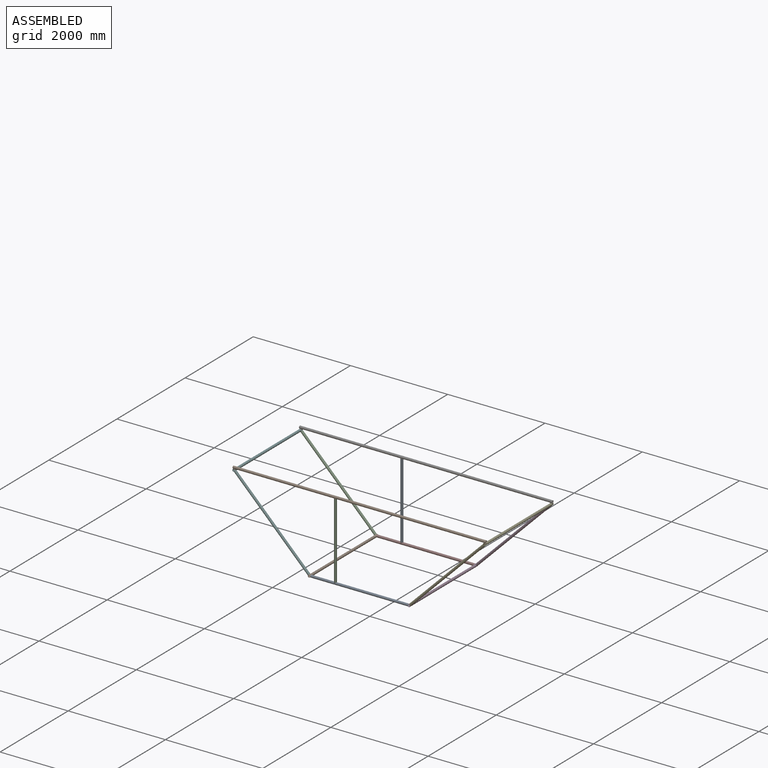
[diagram: assembled view]
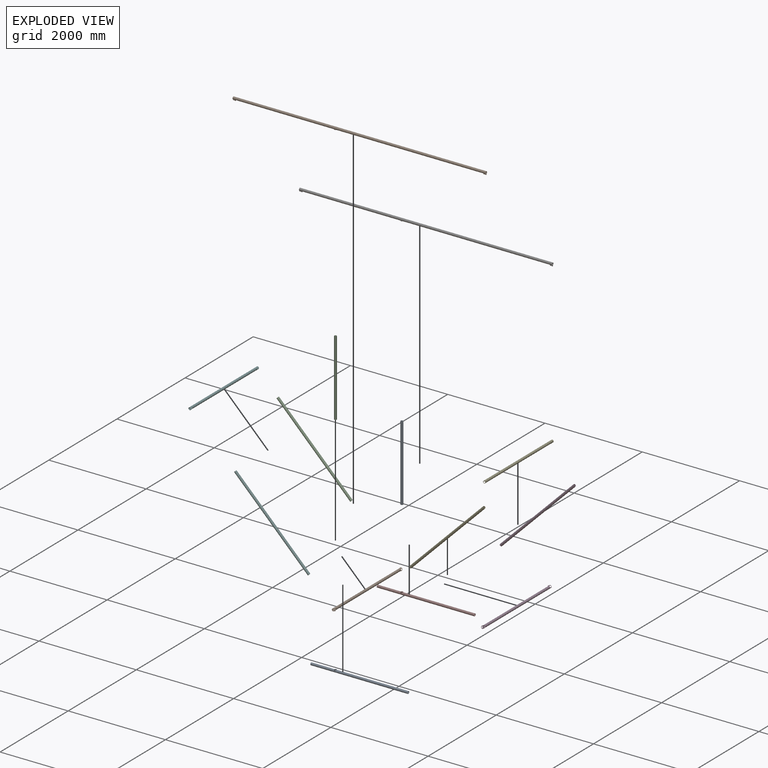
[diagram: exploded view]
GUIDED TOUR — MATED ASSEMBLY (Onshape document 16f294909b3753c3baa4b377, AutoMate assembly 16f294909b3753c3baa4b377_c614a0eb7ab384ec3b6d389d_98e67777d6a7711731985608_default)

This assembly has 14 components, labeled P0..P13 below (a component is one placed occurrence of a part; the same part can appear more than once), held together by 13 mates. A mate is a constraint between two components; its type names the relative motion it leaves free:
  FASTENED — locks the two components together rigidly (no relative motion).
Axis/direction vectors are unit vectors and 'through' points are millimeter coordinates, both in the assembly's world frame.

MATES
  1. FASTENED "Fest 11": P7 <-> P8, direction (0.000, 0.000, 1.000) through (913.53, 1638.76, -462.57) mm
  2. FASTENED "Fest 4": P13 <-> P9, direction (0.707, 0.000, -0.707) through (370.85, -310.94, -469.89) mm
  3. FASTENED "Fest 6": P4 <-> P3, direction (-0.707, 0.000, -0.707) through (2456.21, -311.24, -469.89) mm
  4. FASTENED "Fest 8": P12 <-> P11, direction (-0.707, 0.000, -0.707) through (3972.95, 1637.95, 1046.85) mm
  5. FASTENED "Fest 7": P11 <-> P3, direction (-0.707, 0.000, -0.707) through (2456.21, 1637.95, -469.89) mm
  6. FASTENED "Fest 9": P2 <-> P5, direction (-0.707, 0.000, 0.707) through (-1145.89, 1638.24, 1046.85) mm
  7. FASTENED "Fest 10": P10 <-> P0, direction (0.000, 0.000, -1.000) through (913.53, -311.76, -462.57) mm
  8. FASTENED "Fest 1": P9 <-> P0, direction (1.000, 0.000, 0.000) through (413.53, -311.76, -487.57) mm
  9. FASTENED "Fest 2": P9 <-> P7, direction (1.000, 0.000, 0.000) through (413.53, 1638.76, -487.57) mm
  10. FASTENED "Fest 12": P1 <-> P10, direction (0.000, 0.000, -1.000) through (913.53, -311.76, 1087.43) mm
  11. FASTENED "Fest 13": P6 <-> P8, direction (0.000, 0.000, -1.000) through (913.53, 1638.76, 1087.43) mm
  12. FASTENED "Fest 5": P2 <-> P9, direction (-0.707, 0.000, 0.707) through (370.85, 1638.24, -469.89) mm
  13. FASTENED "Fest 3": P3 <-> P7, direction (-1.000, 0.000, 0.000) through (2413.53, 1638.76, -487.57) mm

ASSEMBLY ORDER
  1. P13 — the base component [order verified]
  2. P2 [order verified]
  3. P11 [order verified]
  4. P4 [order verified]
  5. P9 [order verified]
  6. P3 [order verified]
  7. P10 [order verified]
  8. P8 [order verified]
  9. P12 [order verified]
  10. P5 [order verified]
  11. P1 [order verified]
  12. P6 [order verified]
  13. P0 [order verified]
  14. P7 [order verified]
Order-tag legend:
  [order verified] — this step's position reverses a verified removal order: the component was checked to insert without passing through the ones already placed.

Of the 14 components, 6 carry the full construction recipe — the FeatureScript program that regenerates the part's solid from scratch; the rest are supplied as boundary geometry only.
Because this assembly has more than 12 components, the tour below covers the 12 most significant ones individually (every recipe-attached component first, then the largest by part volume), in assembly order; the remaining 2 are summarized together in a grouped section at the end.
Each toured component is shown spotlighted twice — in the assembled view, then in the exploded view, where a leader line traces a displaced component back to its assembled socket (saturated green if recipe-attached, orange if geometry-only; every other component desaturated gray) — followed by its recipe or geometry summary and the mates that hold it.
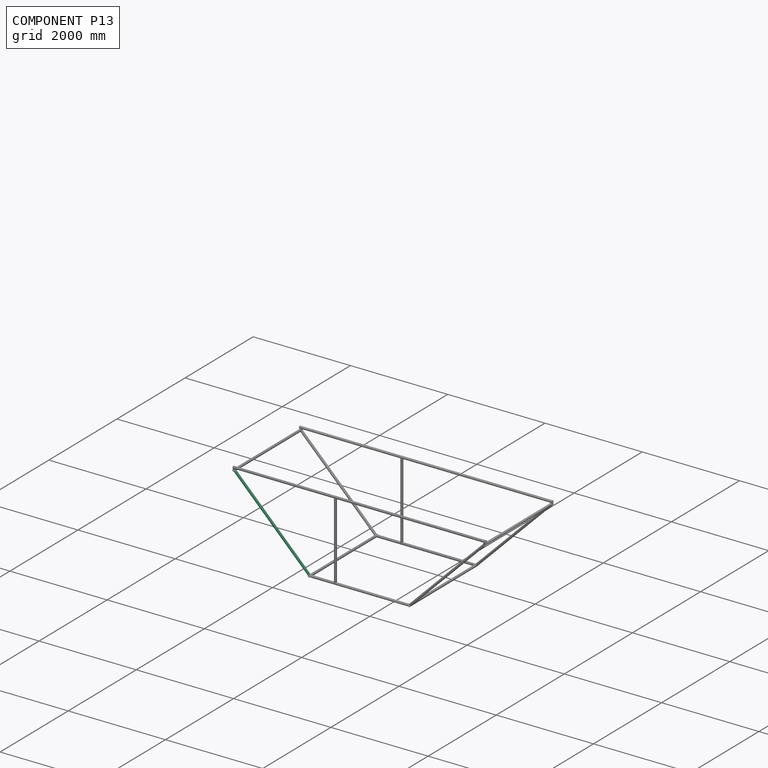
[diagram: component P13 — assembled]
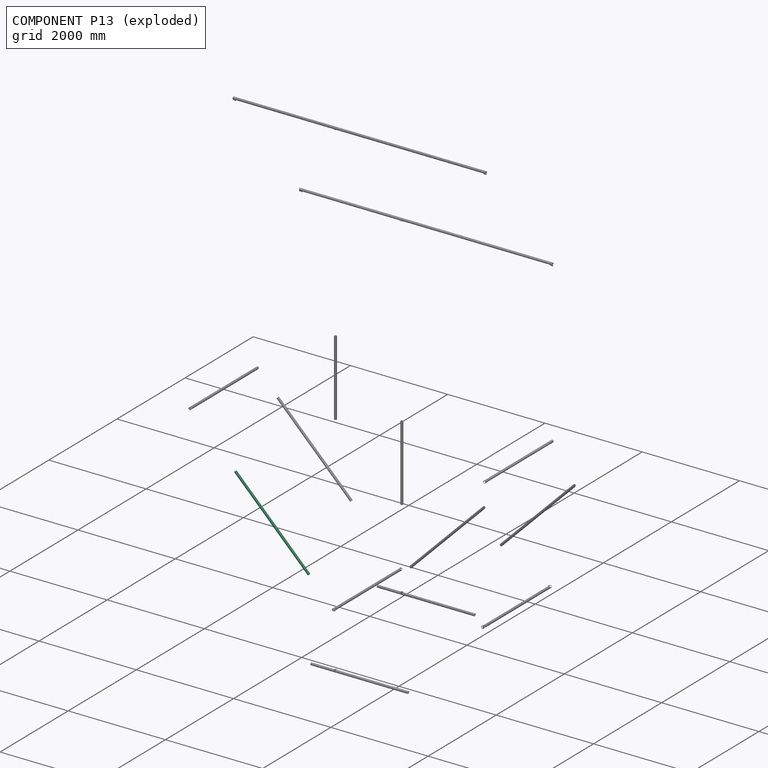
[diagram: component P13 — exploded]
COMPONENT P13 — same part as P2 (CADFS 00924504); its construction recipe is shown at P2.
Held by: FASTENED mate "Fest 4" to P9.
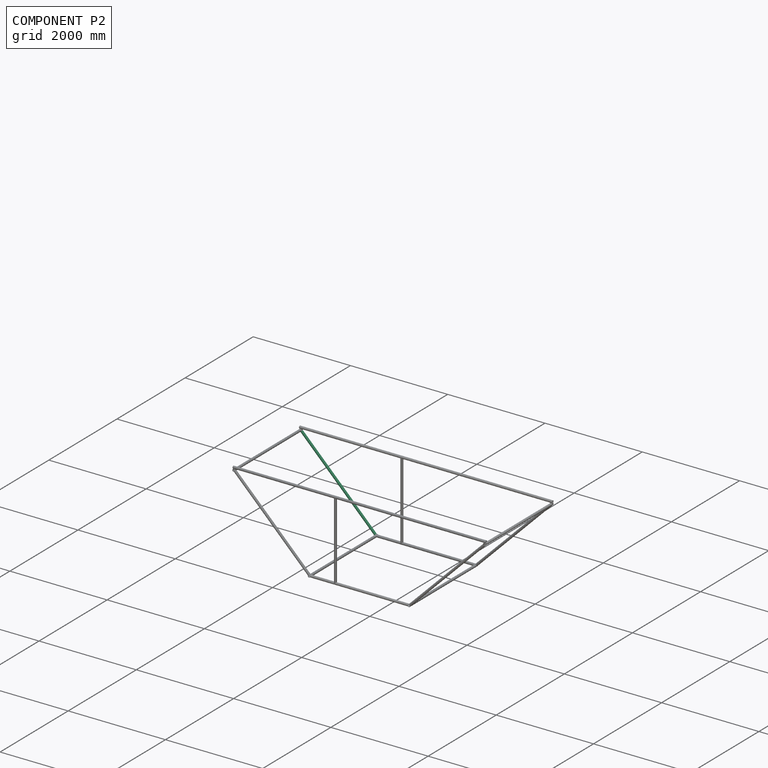
[diagram: component P2 — assembled]
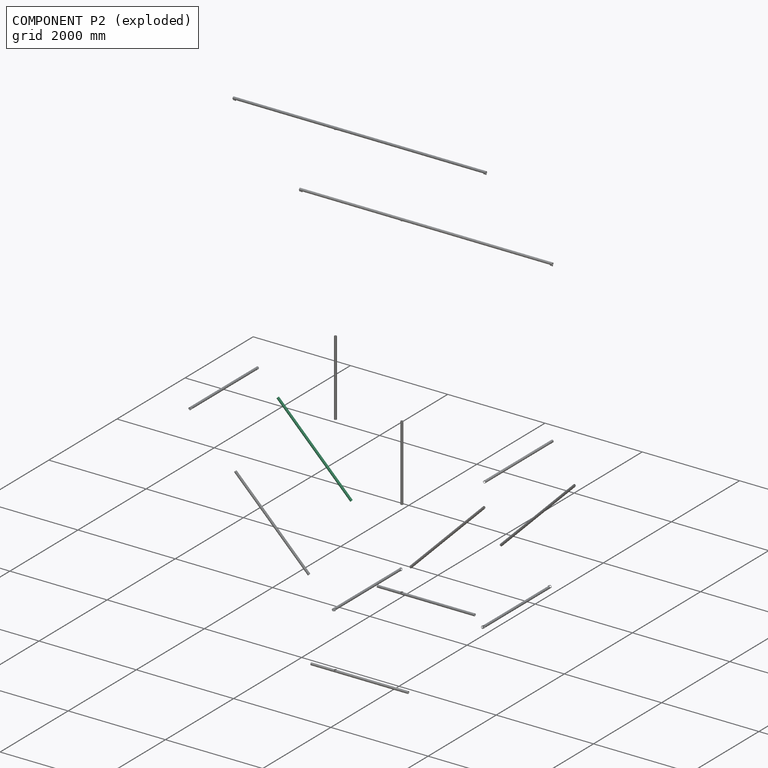
[diagram: component P2 — exploded]
COMPONENT P2 — recipe-attached (CADFS 00924504, mesh-verified: the recipe's output STEP matches this component's geometry to below the mesh-comparison resolution (tessellation chordal tolerance ~3.22 mm)).
Held by: FASTENED mate "Fest 9" to P5; FASTENED mate "Fest 5" to P9.
Construction recipe (FeatureScript — the CAD program that rebuilds this solid; sketch coordinates are in the units given by the * unit suffixes, e.g. mm):

FeatureScript 1549;
import(path : "onshape/std/geometry.fs", version : "1549.0");
import(path : "onshape/std/common.fs", version : "1549.0");
const mm = millimeter;
const VERTEX = EntityType.VERTEX;
const EDGE = EntityType.EDGE;
const FACE = EntityType.FACE;
const BODY = EntityType.BODY;
function v(x, y){return vector(x, y);}
function OD(order){return orderDisambiguation(order);}
function OSD(set){return originalSetDisambiguation(set);}
function TD(topology){return topologyDisambiguation(topology);}
function TDD(query){return trueDependencyDisambiguation(query);}
function sQuery(a, b, c) {return sketchEntityQuery(a, b, c);}

annotation { "Feature Type Name" : "Feature", "Feature Type Description" : "" }
export const myFeature = defineFeature(function(context is Context, id is Id, definition is map)
    precondition{}
    {
        {
            var Q0;
            Q0=qCreatedBy(makeId("Front.planeOp"),FACE);
            var sketch = newSketch(context, id + "F0", { "sketchPlane" : qUnion([Q0])});
            skCircle(sketch, "E0", {"center": v(0, 0) * mm, "radius": 25 * mm});
            skCircle(sketch, "E1", {"center": v(0, 0) * mm, "radius": 21 * mm});
            skSolve(sketch);
        }
        {
            var Q0;
            Q0=makeQuery(id+"F0.imprint","IMPRINT",FACE,{"disambiguationData":[TD([[makeQuery(id+"F0.imprint","IMPRINT",EDGE,{"derivedFrom":sQuery(id+"F0.wireOp",EDGE,"E0")}),1.0]])]});
            extrude(context, id + "F1", {"entities" : qUnion([Q0]), "depth" : 2120 * mm, "offsetDistance" : 25 * mm, "hasSecondDirection" : true, "secondDirectionOppositeDirection" : true, "secondDirectionDepth" : 25 * mm});
        }
    });
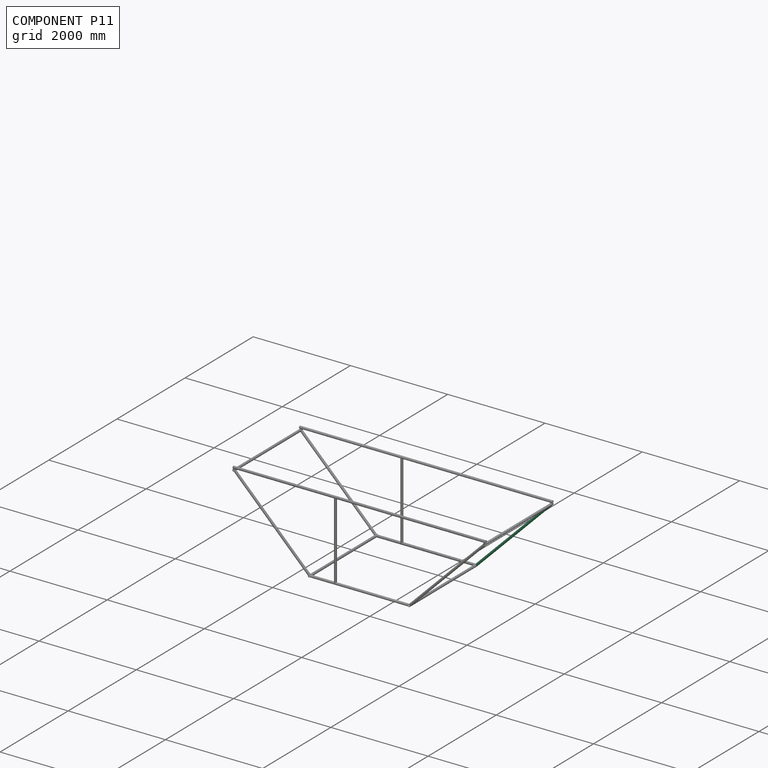
[diagram: component P11 — assembled]
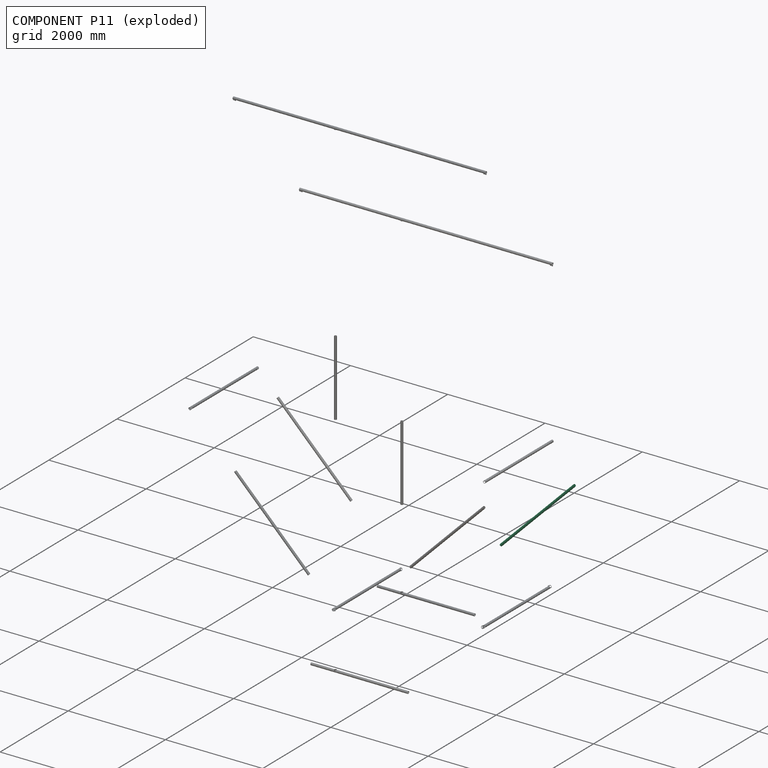
[diagram: component P11 — exploded]
COMPONENT P11 — same part as P2 (CADFS 00924504); its construction recipe is shown at P2.
Held by: FASTENED mate "Fest 8" to P12; FASTENED mate "Fest 7" to P3.
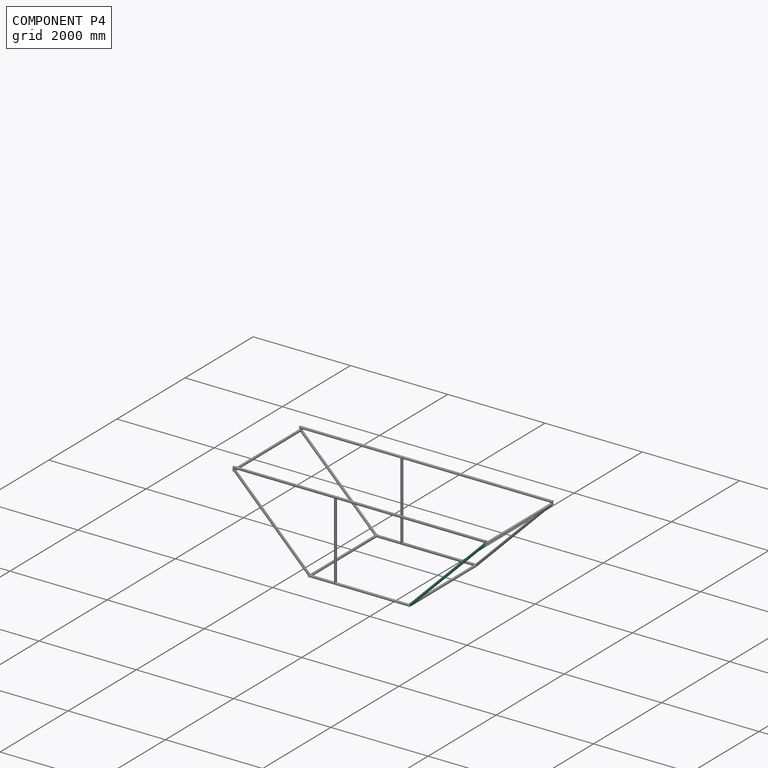
[diagram: component P4 — assembled]
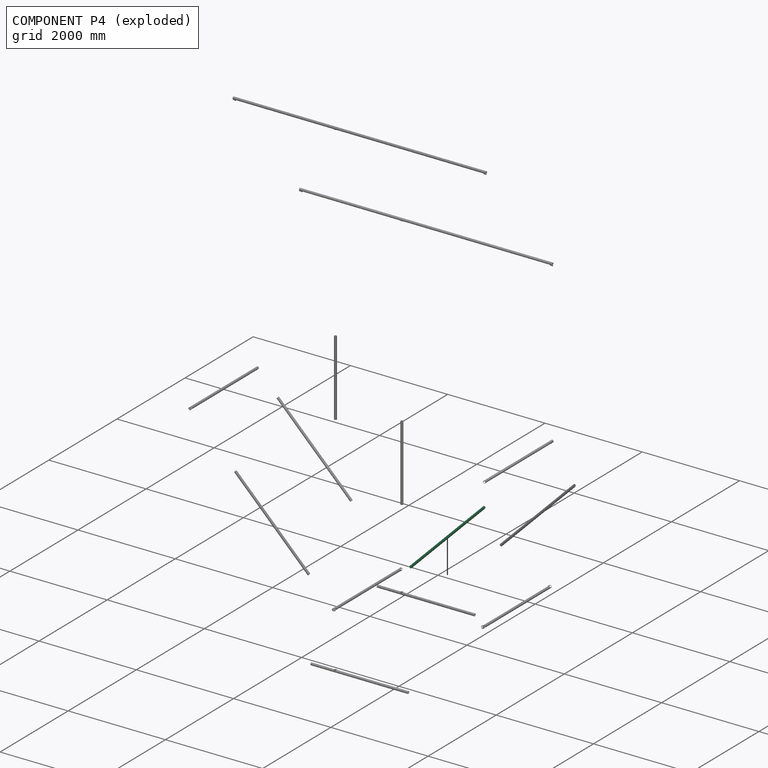
[diagram: component P4 — exploded]
COMPONENT P4 — same part as P2 (CADFS 00924504); its construction recipe is shown at P2.
Held by: FASTENED mate "Fest 6" to P3.
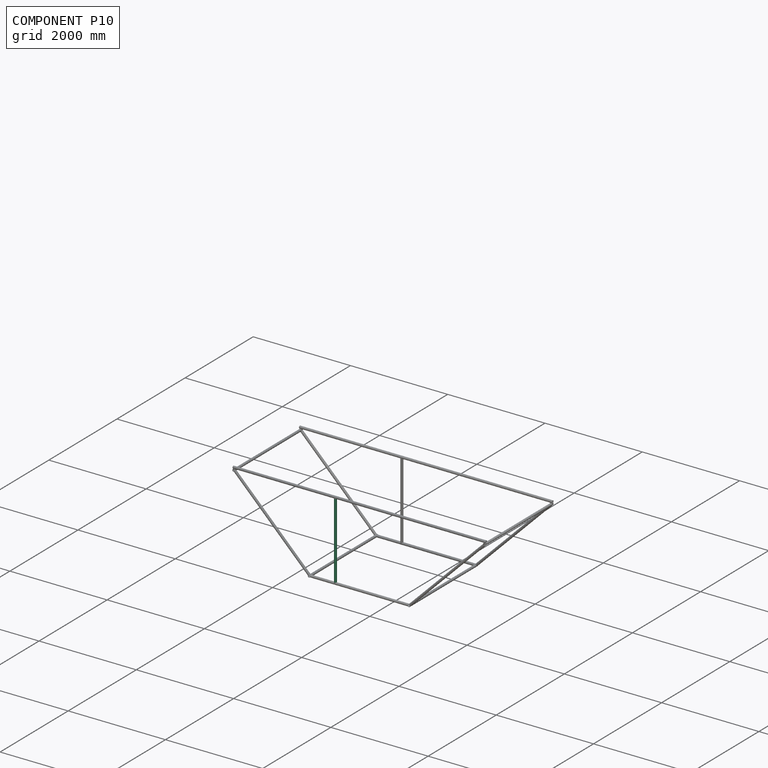
[diagram: component P10 — assembled]
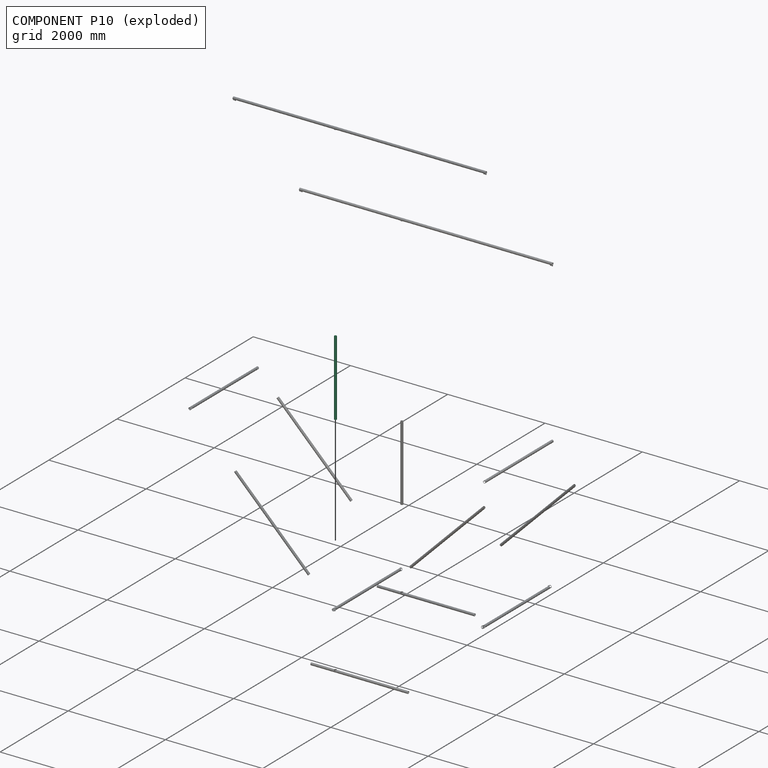
[diagram: component P10 — exploded]
COMPONENT P10 — same part as P8 (CADFS 00924497); its construction recipe is shown at P8.
Held by: FASTENED mate "Fest 10" to P0; FASTENED mate "Fest 12" to P1.
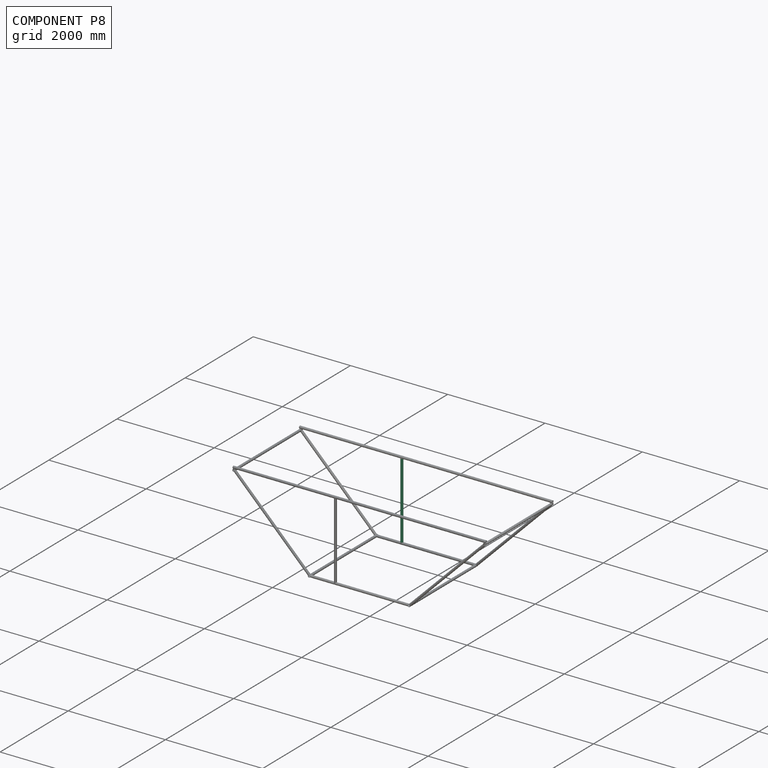
[diagram: component P8 — assembled]
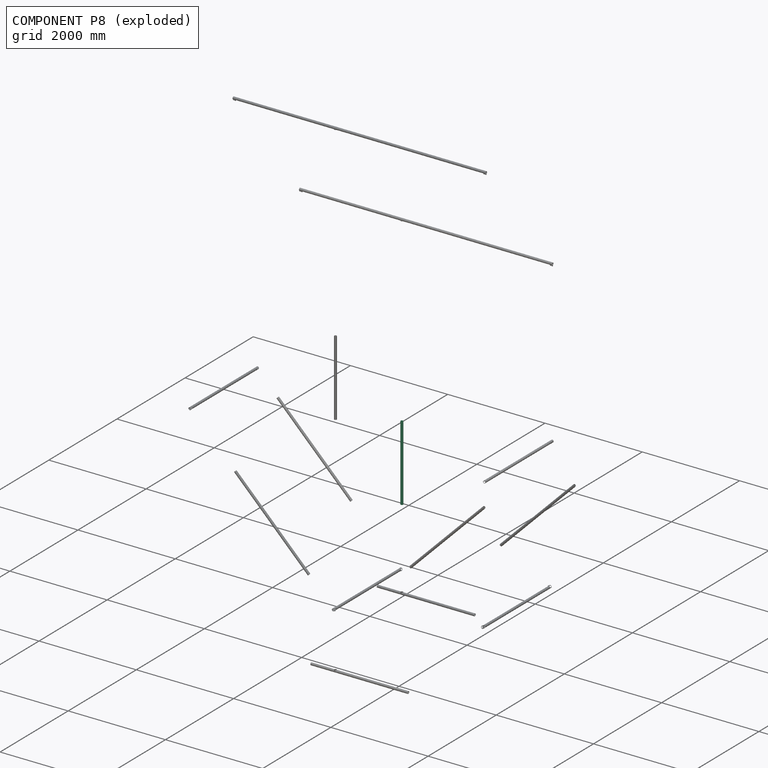
[diagram: component P8 — exploded]
COMPONENT P8 — recipe-attached (CADFS 00924497, mesh-verified: the recipe's output STEP matches this component's geometry to below the mesh-comparison resolution (tessellation chordal tolerance ~2.33 mm)).
Held by: FASTENED mate "Fest 11" to P7; FASTENED mate "Fest 13" to P6.
Construction recipe (FeatureScript — the CAD program that rebuilds this solid; sketch coordinates are in the units given by the * unit suffixes, e.g. mm):

FeatureScript 1549;
import(path : "onshape/std/geometry.fs", version : "1549.0");
import(path : "onshape/std/common.fs", version : "1549.0");
const mm = millimeter;
const VERTEX = EntityType.VERTEX;
const EDGE = EntityType.EDGE;
const FACE = EntityType.FACE;
const BODY = EntityType.BODY;
function v(x, y){return vector(x, y);}
function OD(order){return orderDisambiguation(order);}
function OSD(set){return originalSetDisambiguation(set);}
function TD(topology){return topologyDisambiguation(topology);}
function TDD(query){return trueDependencyDisambiguation(query);}
function sQuery(a, b, c) {return sketchEntityQuery(a, b, c);}

annotation { "Feature Type Name" : "Feature", "Feature Type Description" : "" }
export const myFeature = defineFeature(function(context is Context, id is Id, definition is map)
    precondition{}
    {
        {
            var Q0;
            Q0=qCreatedBy(makeId("Front.planeOp"),FACE);
            var sketch = newSketch(context, id + "F0", { "sketchPlane" : qUnion([Q0])});
            skCircle(sketch, "E0", {"center": v(0, 0) * mm, "radius": 25 * mm});
            skCircle(sketch, "E1", {"center": v(0, 0) * mm, "radius": 21 * mm});
            skSolve(sketch);
        }
        {
            var Q0;
            Q0=makeQuery(id+"F0.imprint","IMPRINT",FACE,{"disambiguationData":[TD([[makeQuery(id+"F0.imprint","IMPRINT",EDGE,{"derivedFrom":sQuery(id+"F0.wireOp",EDGE,"E0")}),1.0]])]});
            extrude(context, id + "F1", {"entities" : qUnion([Q0]), "depth" : 1500 * mm, "offsetDistance" : 25 * mm, "hasSecondDirection" : true, "secondDirectionOppositeDirection" : true, "secondDirectionDepth" : 50 * mm});
        }
    });
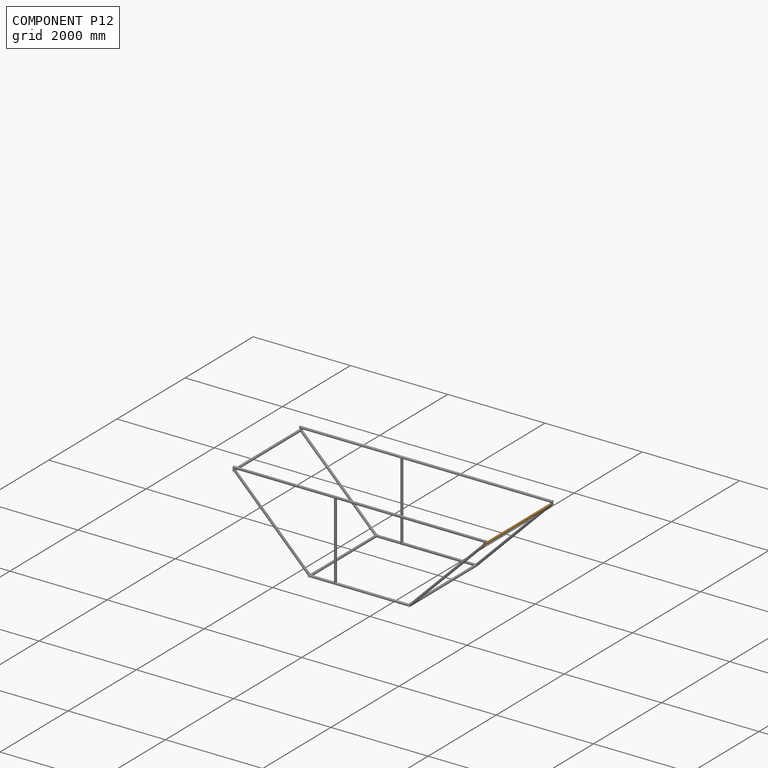
[diagram: component P12 — assembled]
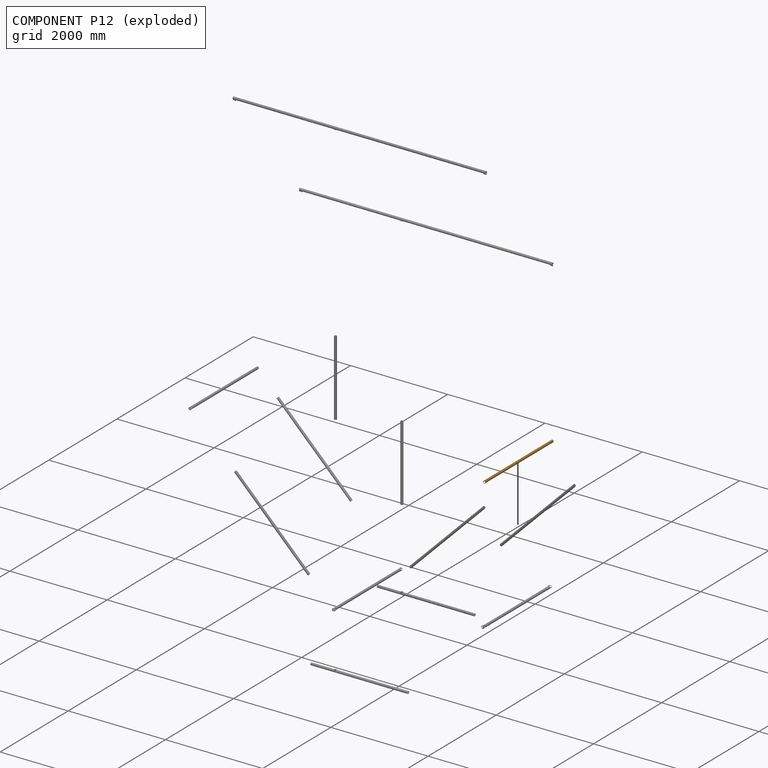
[diagram: component P12 — exploded]
COMPONENT P12 — geometry summary (no construction recipe available for this part):
  bounding box: 2008.0 x 60.4 x 60.4 mm
  B-rep topology: 1 solid, 26 faces, 132 edges
  volume: 1151309 mm^3 (16% of its bounding box)
  symmetry: mirror-symmetric across its y mid-plane
Held by: FASTENED mate "Fest 8" to P11.
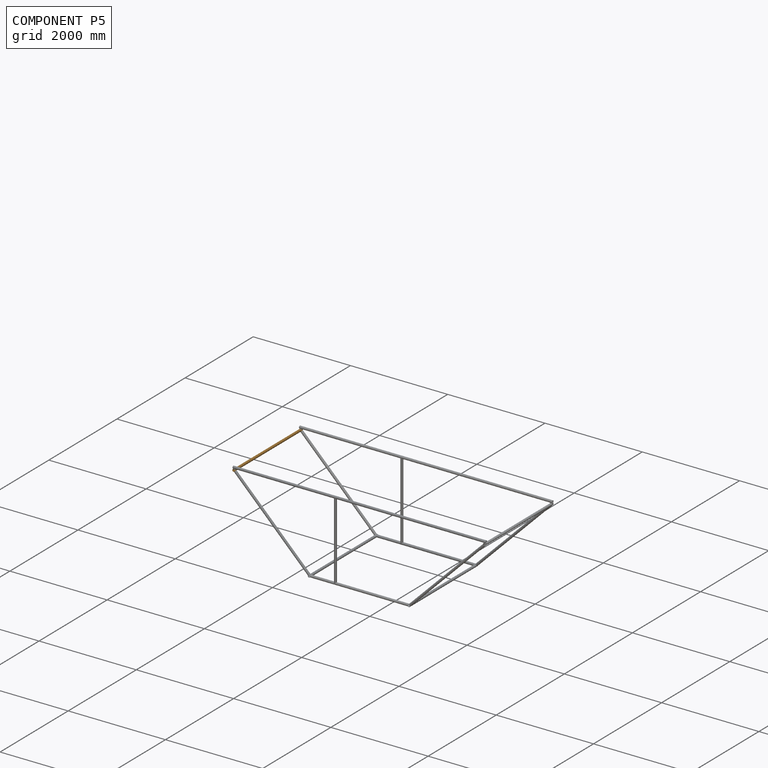
[diagram: component P5 — assembled]
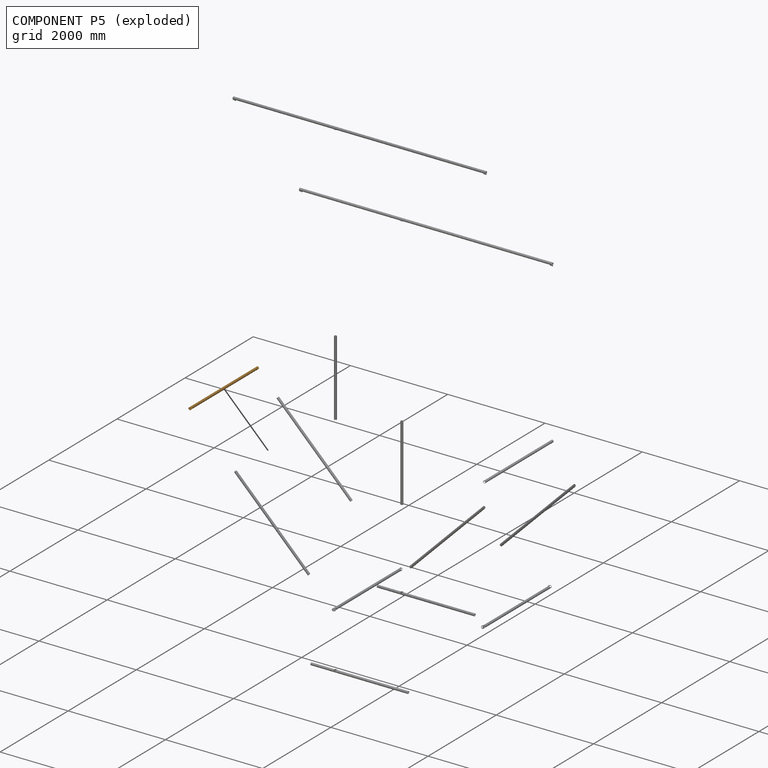
[diagram: component P5 — exploded]
COMPONENT P5 — geometry summary (no construction recipe available for this part):
  bounding box: 2008.0 x 60.4 x 60.4 mm
  B-rep topology: 1 solid, 26 faces, 132 edges
  volume: 1151309 mm^3 (16% of its bounding box)
  symmetry: mirror-symmetric across its y mid-plane
Held by: FASTENED mate "Fest 9" to P2.
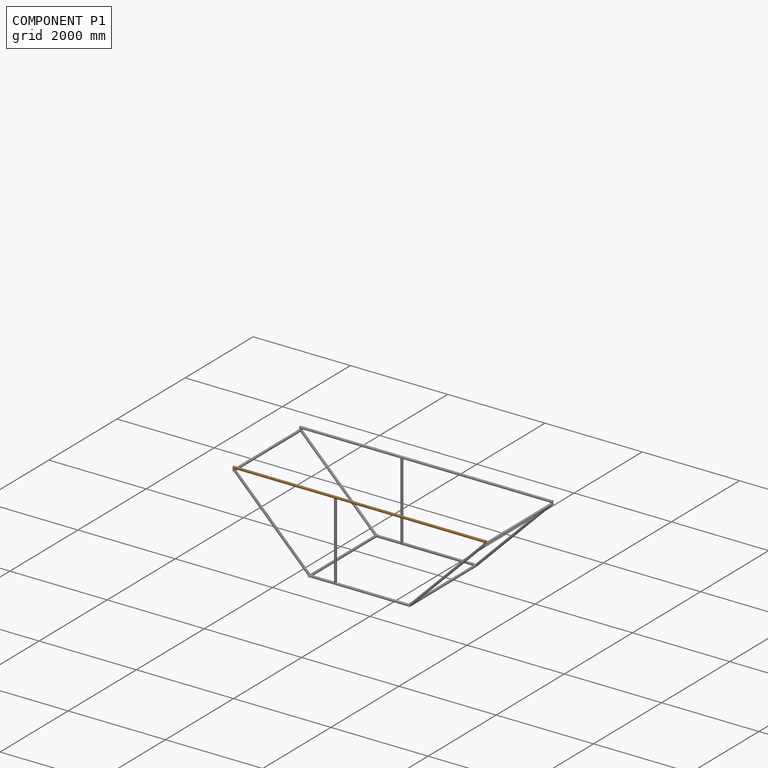
[diagram: component P1 — assembled]
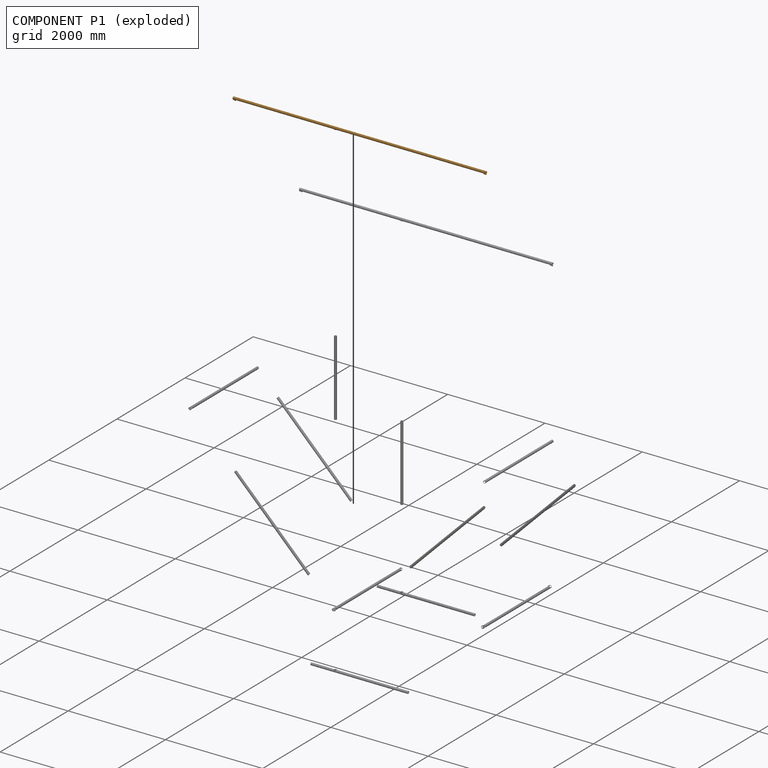
[diagram: component P1 — exploded]
COMPONENT P1 — geometry summary (no construction recipe available for this part):
  bounding box: 5204.8 x 71.0 x 51.0 mm
  B-rep topology: 1 solid, 36 faces, 182 edges
  volume: 3007054 mm^3 (16% of its bounding box)
  symmetry: 2-fold rotationally symmetric about the x axis; revolution-symmetric about the y axis through its bounding-box center; 2-fold rotationally symmetric about the z axis; mirror-symmetric across its x mid-plane, y mid-plane, z mid-plane
Held by: FASTENED mate "Fest 12" to P10.
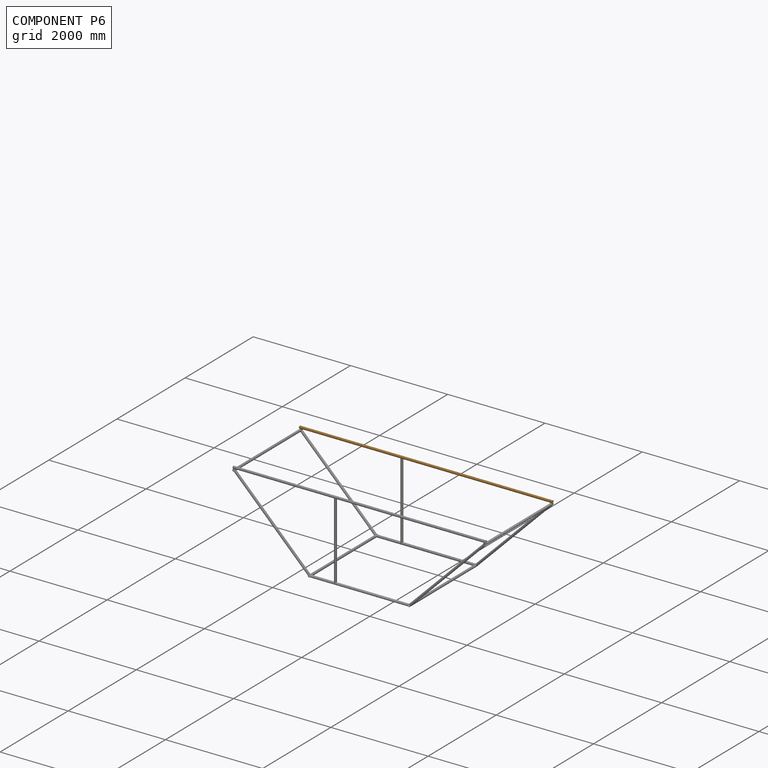
[diagram: component P6 — assembled]
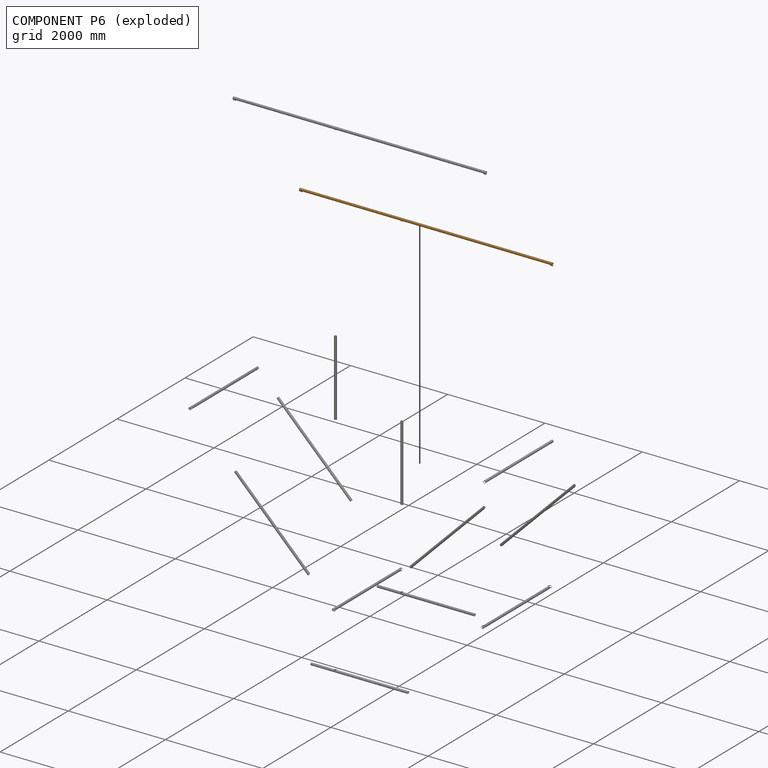
[diagram: component P6 — exploded]
COMPONENT P6 — geometry summary (no construction recipe available for this part):
  bounding box: 5204.8 x 71.0 x 51.0 mm
  B-rep topology: 1 solid, 36 faces, 182 edges
  volume: 3007054 mm^3 (16% of its bounding box)
  symmetry: 2-fold rotationally symmetric about the x axis; revolution-symmetric about the y axis through its bounding-box center; 2-fold rotationally symmetric about the z axis; mirror-symmetric across its x mid-plane, y mid-plane, z mid-plane
Held by: FASTENED mate "Fest 13" to P8.
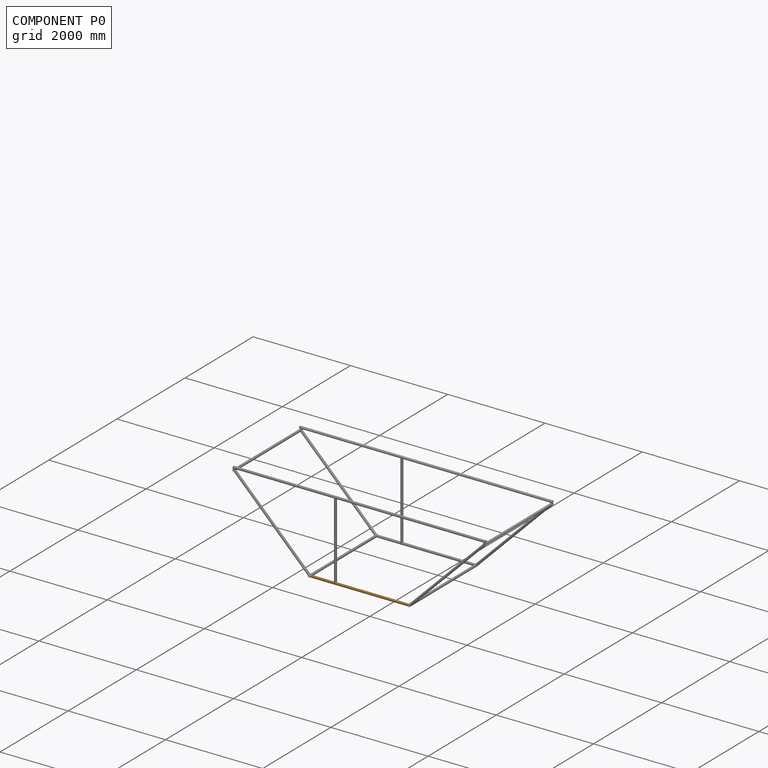
[diagram: component P0 — assembled]
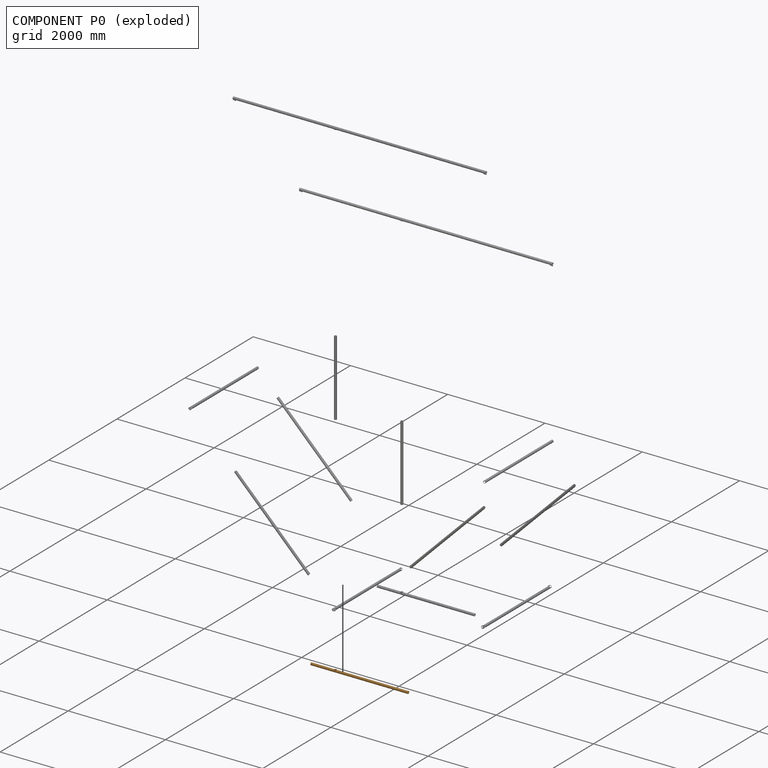
[diagram: component P0 — exploded]
COMPONENT P0 — geometry summary (no construction recipe available for this part):
  bounding box: 2000.9 x 52.9 x 50.9 mm
  B-rep topology: 1 solid, 16 faces, 76 edges
  volume: 1153739 mm^3 (21% of its bounding box)
  symmetry: revolution-symmetric about the y axis through its bounding-box center; mirror-symmetric across its z mid-plane
Held by: FASTENED mate "Fest 10" to P10; FASTENED mate "Fest 1" to P9.
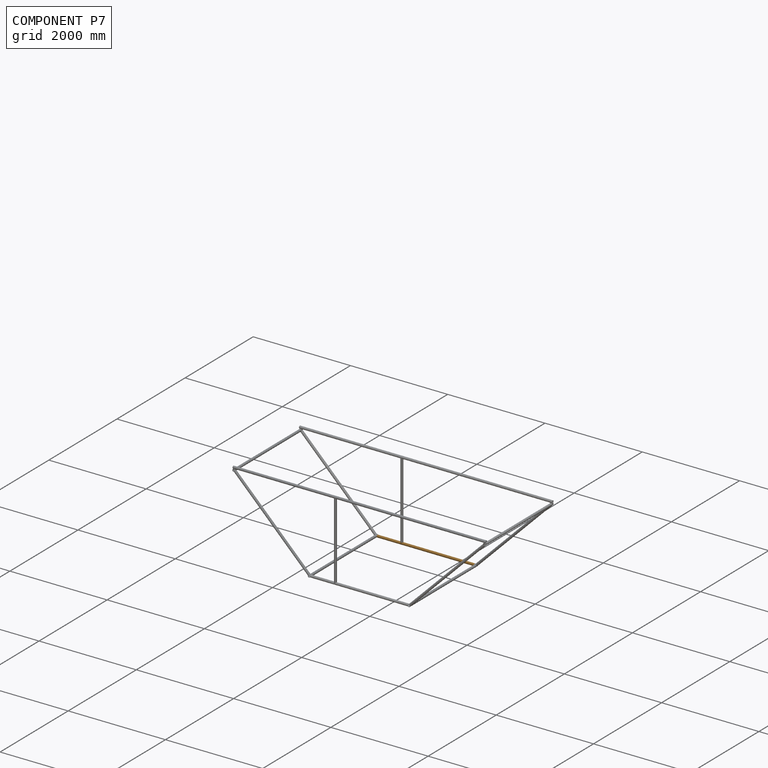
[diagram: component P7 — assembled]
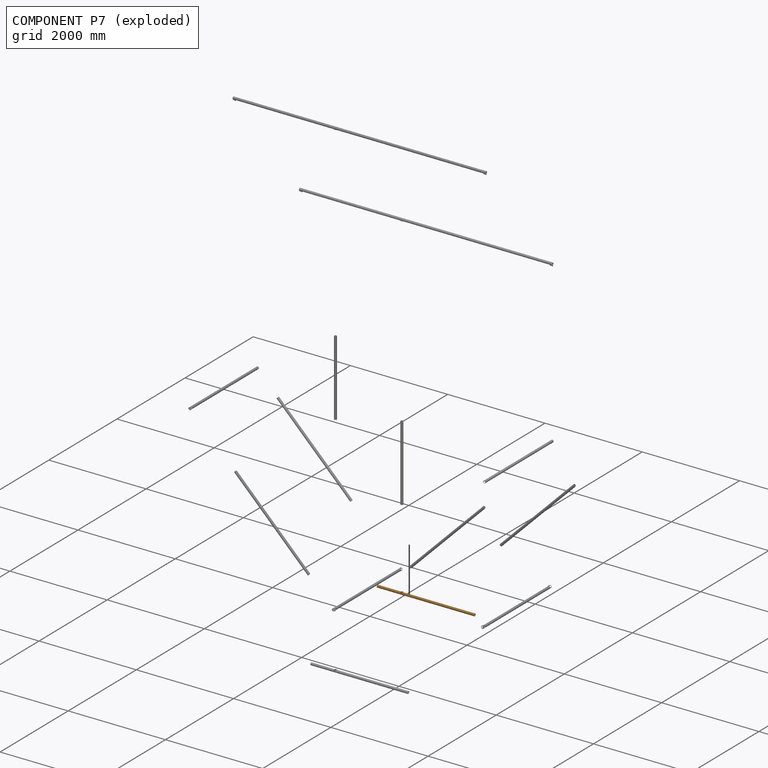
[diagram: component P7 — exploded]
COMPONENT P7 — geometry summary (no construction recipe available for this part):
  bounding box: 2000.9 x 52.9 x 50.9 mm
  B-rep topology: 1 solid, 16 faces, 76 edges
  volume: 1153739 mm^3 (21% of its bounding box)
  symmetry: revolution-symmetric about the y axis through its bounding-box center; mirror-symmetric across its z mid-plane
Held by: FASTENED mate "Fest 11" to P8; FASTENED mate "Fest 2" to P9; FASTENED mate "Fest 3" to P3.
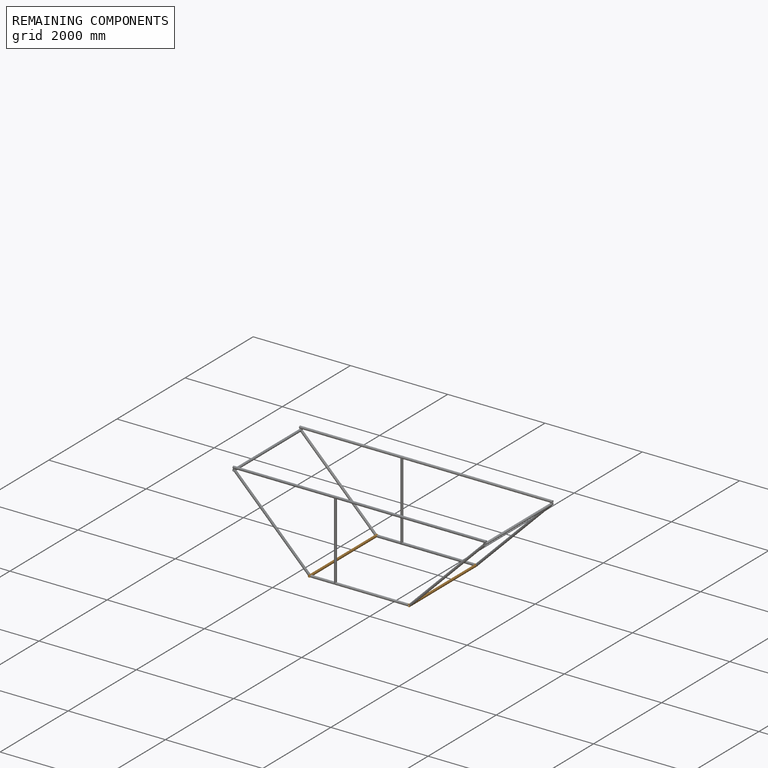
[diagram: remaining components — assembled]
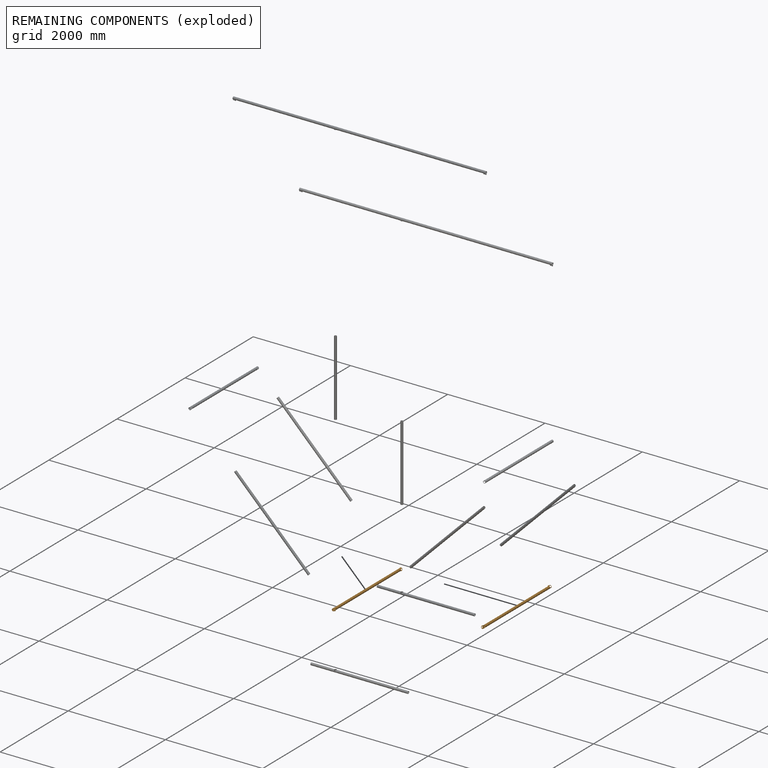
[diagram: remaining components — exploded]
REMAINING COMPONENTS (grouped) — the 2 components below fall outside the per-component tour by the significance rule stated above; both spotlight views highlight the whole group.
  P9: bounding box 2008.9 x 65.3 x 61.3 mm, volume 1146587 mm^3. Held by: FASTENED mate "Fest 4" to P13; FASTENED mate "Fest 1" to P0; FASTENED mate "Fest 2" to P7; FASTENED mate "Fest 5" to P2.
  P3: bounding box 2008.9 x 65.3 x 61.3 mm, volume 1146587 mm^3. Held by: FASTENED mate "Fest 6" to P4; FASTENED mate "Fest 7" to P11; FASTENED mate "Fest 3" to P7.
PROVENANCE & LICENSES
Assembly (occurrences, transforms, mates, per-part STEP geometry): AutoMate dataset, Zenodo record 7776208, CC0.
Construction recipes: CADFS (HuggingFace VladPyatov/CADFS, CC-BY-4.0, layered over the ABC dataset), FeatureScript reconstruction programs keyed by ABC model id.
Join: ABC meta listings map ABC model id -> Onshape documentId; within a shared document, parts are matched by geometric signature (bounding-box dims + volume at 0.1% relative tolerance, exact B-rep face/solid counts).
Verification: 6 of this assembly's 14 components carry a recipe attachment, and every attachment is mesh-verified: the CADFS STEP and the AutoMate member STEP were compared as meshes in their shared local frame (symmetric sampled-point-to-mesh distance); worst across the 6 attachments: below the mesh-comparison resolution (tessellation chordal tolerance ~3.22 mm) on a 2146 mm part.
Renders: orthographic iso camera (az 35 / el 25); the floor grid conveys scale (grid pitch printed in each image; no ruler). In the exploded view each component is displaced by its stored offset vector: the offsets alone carry the explosion direction (mate normal/axis signs are not orientation cues and do not encode it), and separation distances are assigned per mate-chain, not proportionally to assembly-order depth.
